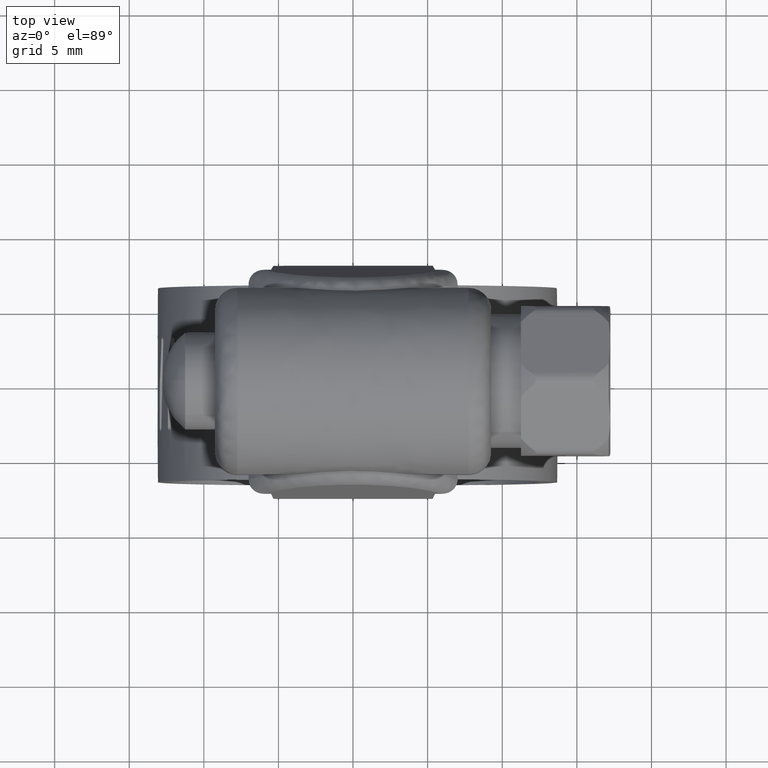
[diagram: clean part render]
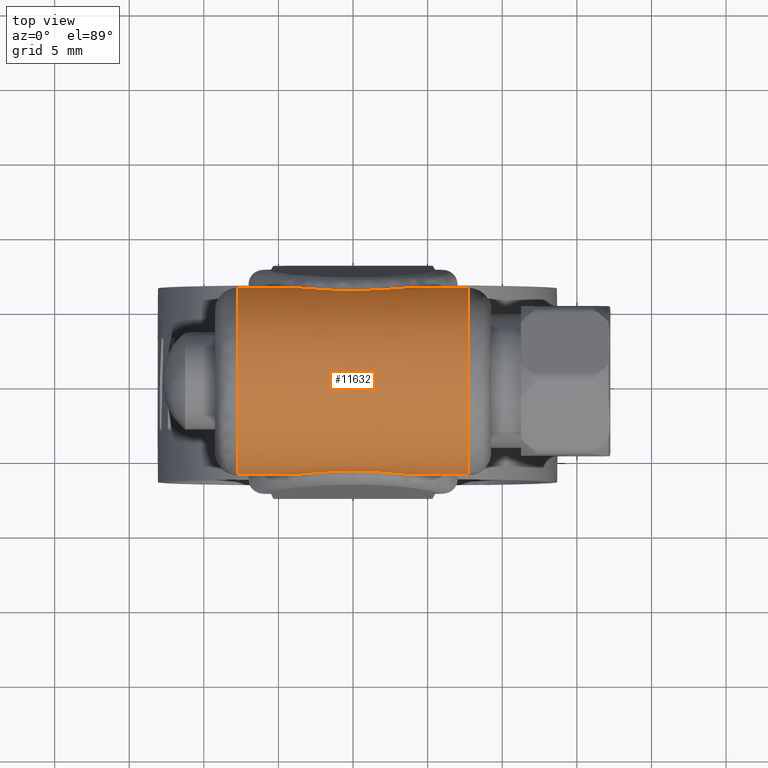
[diagram: same view with one face highlighted and labeled with its STEP entity id]
A machine part, top view. The second image highlights one B-rep face of the part: STEP entity #11632.
In plain terms, the highlighted face is a freeform B-spline surface patch.
Its self-contained STEP definition (entity closure, byte-faithful):
#9795=CARTESIAN_POINT('',(-3.766983245140355,-6.249999633170980,16.577121365332999));
#9796=VERTEX_POINT('',#9795);
#9908=CARTESIAN_POINT('',(3.766983245140355,-6.249999633170980,16.577121365332999));
#9909=VERTEX_POINT('',#9908);
#9917=CARTESIAN_POINT('',(-3.766983245140355,-6.249999633170980,16.577121365332999));
#9918=CARTESIAN_POINT('',(-3.478831496909463,-6.229233364205876,16.739128154655241));
#9919=CARTESIAN_POINT('',(-3.183300914378316,-6.204570008767342,16.882148632117168));
#9920=CARTESIAN_POINT('',(-2.576808892005547,-6.155228093785371,17.130036402120751));
#9921=CARTESIAN_POINT('',(-2.265836634976381,-6.130547265610534,17.234876518080021));
#9922=CARTESIAN_POINT('',(-1.866693869858923,-6.103751019367197,17.340919599546389));
#9923=CARTESIAN_POINT('',(-1.786486061357972,-6.098601892761600,17.360832235081901));
#9924=CARTESIAN_POINT('',(-1.626024433981459,-6.088846631766009,17.397907521513719));
#9925=CARTESIAN_POINT('',(-1.545665445436081,-6.084233341677489,17.415098594033861));
#9926=CARTESIAN_POINT('',(-1.304205280765513,-6.071283367227001,17.462673344400940));
#9927=CARTESIAN_POINT('',(-1.142721123573348,-6.063841070201703,17.489062200122419));
#9928=CARTESIAN_POINT('',(-0.656740159557208,-6.045693866015511,17.552452619586020));
#9929=CARTESIAN_POINT('',(-0.330719706065374,-6.039235105378521,17.573749912531952));
#9930=CARTESIAN_POINT('',(0.161419786626403,-6.039184386857341,17.573920279852860));
#9931=CARTESIAN_POINT('',(0.325985564198005,-6.040757096750824,17.568663909435760));
#9932=CARTESIAN_POINT('',(0.573631993009526,-6.045493593546023,17.552599085312352));
#9933=CARTESIAN_POINT('',(0.656241352251390,-6.047467871330164,17.545878086249040));
#9934=CARTESIAN_POINT('',(0.820475667525163,-6.052146371881373,17.529813216404978));
#9935=CARTESIAN_POINT('',(0.902253417529042,-6.054853191231874,17.520460500731989));
#9936=CARTESIAN_POINT('',(1.309472620170547,-6.070102513587345,17.467179843144940));
#9937=CARTESIAN_POINT('',(1.629917328613110,-6.087864840067938,17.403768142886481));
#9938=CARTESIAN_POINT('',(2.260627271324118,-6.130187882777850,17.236317853900928));
#9939=CARTESIAN_POINT('',(2.570888658853245,-6.154751397064583,17.132263968381999));
#9940=CARTESIAN_POINT('',(3.028839962946760,-6.192001216301294,16.945374784512900));
#9941=CARTESIAN_POINT('',(3.179777303179230,-6.204428908061730,16.878107182095970));
#9942=CARTESIAN_POINT('',(3.476686108309584,-6.228226204638982,16.734530296358798));
#9943=CARTESIAN_POINT('',(3.622917516897374,-6.239617229855899,16.658119055673680));
#9944=CARTESIAN_POINT('',(3.766983245140355,-6.249999633170980,16.577121365332999));
#9945=B_SPLINE_CURVE_WITH_KNOTS('',3,(#9917,#9918,#9919,#9920,#9921,#9922,#9923,#9924,#9925,#9926,#9927,#9928,#9929,#9930,#9931,#9932,#9933,#9934,#9935,#9936,#9937,#9938,#9939,#9940,#9941,#9942,#9943,#9944),.UNSPECIFIED.,.F.,.U.,(4,2,2,2,2,2,2,2,2,2,2,2,2,4),(0.000000039906754,0.125000000000001,0.250000000000001,0.281250000000001,0.312500000000001,0.375000000000001,0.500000000000001,0.562500000000001,0.593750000000001,0.625000000000000,0.750000000000000,0.875000000000000,0.937500000000000,0.999999982435041),.UNSPECIFIED.);
#9946=EDGE_CURVE('',#9796,#9909,#9945,.T.);
#10138=CARTESIAN_POINT('',(-3.767731017053410,6.249999633170980,16.577121365332999));
#10139=VERTEX_POINT('',#10138);
#10147=CARTESIAN_POINT('',(3.767731017053410,6.249999633170980,16.577121365332999));
#10148=VERTEX_POINT('',#10147);
#10149=CARTESIAN_POINT('',(3.767731017053410,6.249999633170980,16.577121365332999));
#10150=CARTESIAN_POINT('',(3.479497733507518,6.229237709105721,16.739094258291651));
#10151=CARTESIAN_POINT('',(3.183884050679524,6.204583222070062,16.882071151559519));
#10152=CARTESIAN_POINT('',(2.577243934754033,6.155257050299552,17.129902017543969));
#10153=CARTESIAN_POINT('',(2.266206147951572,6.130582696073145,17.234727400421061));
#10154=CARTESIAN_POINT('',(1.866991587071622,6.103790234875439,17.340766625409820));
#10155=CARTESIAN_POINT('',(1.786771470837745,6.098641773924828,17.360678763914390));
#10156=CARTESIAN_POINT('',(1.626284023453253,6.088887352445290,17.397754646818960));
#10157=CARTESIAN_POINT('',(1.545912167912042,6.084274283725710,17.414946625872581));
#10158=CARTESIAN_POINT('',(1.304413467685331,6.071324521135703,17.462525250646319));
#10159=CARTESIAN_POINT('',(1.142903704963588,6.063881763437935,17.488918202284239));
#10160=CARTESIAN_POINT('',(0.656845720759579,6.045732683460419,17.552320710697689));
#10161=CARTESIAN_POINT('',(0.330773580215899,6.039272260056391,17.573625094178219));
#10162=CARTESIAN_POINT('',(-0.161444854682112,6.039221514861135,17.573795563976041));
#10163=CARTESIAN_POINT('',(-0.326037165918512,6.040794574774885,17.568537633646770));
#10164=CARTESIAN_POINT('',(-0.573723678317318,6.045531948734165,17.552468569044731));
#10165=CARTESIAN_POINT('',(-0.656346915220894,6.047506583847865,17.545745815254921));
#10166=CARTESIAN_POINT('',(-0.820608736505639,6.052185828560140,17.529677062264259));
#10167=CARTESIAN_POINT('',(-0.902400225254582,6.054893035526168,17.520322214310770));
#10168=CARTESIAN_POINT('',(-1.309688241338812,6.070144131077192,17.467030690373669));
#10169=CARTESIAN_POINT('',(-1.630188360697988,6.087907219618561,17.403609516303838));
#10170=CARTESIAN_POINT('',(-2.261015828429809,6.130224851233542,17.236162525183840));
#10171=CARTESIAN_POINT('',(-2.571339628588592,6.154781890041164,17.132122576332680));
#10172=CARTESIAN_POINT('',(-3.029391561703454,6.192018955972971,16.945279975485011));
#10173=CARTESIAN_POINT('',(-3.180366883374803,6.204442304778198,16.878030458831791));
#10174=CARTESIAN_POINT('',(-3.477353567144340,6.228231820699066,16.734492306269210));
#10175=CARTESIAN_POINT('',(-3.623625442391634,6.239619468304403,16.658101592606808));
#10176=CARTESIAN_POINT('',(-3.767731017053410,6.249999633170980,16.577121365332999));
#10177=B_SPLINE_CURVE_WITH_KNOTS('',3,(#10149,#10150,#10151,#10152,#10153,#10154,#10155,#10156,#10157,#10158,#10159,#10160,#10161,#10162,#10163,#10164,#10165,#10166,#10167,#10168,#10169,#10170,#10171,#10172,#10173,#10174,#10175,#10176),.UNSPECIFIED.,.F.,.U.,(4,2,2,2,2,2,2,2,2,2,2,2,2,4),(0.000000039879375,0.125000000000000,0.250000000000001,0.281250000000000,0.312500000000000,0.375000000000000,0.500000000000000,0.562500000000000,0.593749999999999,0.624999999999999,0.749999999999999,0.875000000000000,0.937500000000000,0.999999982445228),.UNSPECIFIED.);
#10178=EDGE_CURVE('',#10148,#10139,#10177,.T.);
#10696=CARTESIAN_POINT('',(7.750000000000000,6.249999633170980,16.577121365332999));
#10697=VERTEX_POINT('',#10696);
#10757=CARTESIAN_POINT('',(7.750000000000000,-6.249999633170980,16.577121365332999));
#10758=VERTEX_POINT('',#10757);
#10799=CARTESIAN_POINT('',(7.750000000000000,-6.249999633170980,16.577121365332999));
#10800=CARTESIAN_POINT('',(7.749999999999989,-6.234945137005329,16.694573841088040));
#10801=CARTESIAN_POINT('',(7.750000000000010,-6.214735979583272,16.823298231953999));
#10802=CARTESIAN_POINT('',(7.749999999999997,-6.188399172751410,16.962927941131671));
#10803=CARTESIAN_POINT('',(7.750000000000006,-6.181413901101433,16.997754248808580));
#10804=CARTESIAN_POINT('',(7.749999999999999,-6.172302074478441,17.044236418193190));
#10805=CARTESIAN_POINT('',(7.750000000000021,-6.053425786221692,17.612204235749971));
#10806=CARTESIAN_POINT('',(7.749999999999984,-5.853381086466320,18.174764847997789));
#10807=CARTESIAN_POINT('',(7.749999999999846,-5.586853825809561,18.690215578280469));
#10808=CARTESIAN_POINT('',(7.750000000000203,-5.559030289277543,18.742474166174631));
#10809=CARTESIAN_POINT('',(7.750000000000119,-5.536878671588400,18.784341903090439));
#10810=CARTESIAN_POINT('',(7.749999999999965,-5.513781208517113,18.825695058589581));
#10811=CARTESIAN_POINT('',(7.750000000000014,-5.490933279459092,18.867187396842720));
#10812=CARTESIAN_POINT('',(7.749999999999942,-5.333001724436028,19.145197405472850));
#10813=CARTESIAN_POINT('',(7.750000000000050,-5.002918582207061,19.638377589723810));
#10814=CARTESIAN_POINT('',(7.749999999999989,-4.404688252876738,20.313513278481530));
#10815=CARTESIAN_POINT('',(7.750000000000006,-3.786404788194126,20.833317064959228));
#10816=CARTESIAN_POINT('',(7.749999999999990,-3.090092537459213,21.284628484533680));
#10817=CARTESIAN_POINT('',(7.750000000000013,-2.429364911677420,21.609243718367669));
#10818=CARTESIAN_POINT('',(7.750000000000000,-1.452168151249757,21.940697334171240));
#10819=CARTESIAN_POINT('',(7.750000000000016,-0.733759100190387,22.053183066058850));
#10820=CARTESIAN_POINT('',(7.750000000000001,-0.236769478383794,22.072657352986020));
#10821=CARTESIAN_POINT('',(7.750000000000004,-0.213095313120322,22.073355193444851));
#10822=CARTESIAN_POINT('',(7.750000000000008,-0.177590992446614,22.074749318349511));
#10823=CARTESIAN_POINT('',(7.750000000003596,-0.142065956632096,22.075395147341901));
#10824=CARTESIAN_POINT('',(7.749999999987081,-0.082878490939576,22.076779673171099));
#10825=CARTESIAN_POINT('',(7.750000000012834,-0.023684964612218,22.077197998304079));
#10826=CARTESIAN_POINT('',(7.749999999994119,0.035506813886916,22.077095962441330));
#10827=CARTESIAN_POINT('',(7.750000000001188,0.071019517404853,22.076566180203621));
#10828=CARTESIAN_POINT('',(7.750000000000006,0.106547597894328,22.076352563012708));
#10829=CARTESIAN_POINT('',(7.750000000000006,0.142062493286065,22.075352382479981));
#10830=CARTESIAN_POINT('',(7.750000000000006,0.177587199596809,22.074750491708318));
#10831=CARTESIAN_POINT('',(7.750000000000006,0.213090238047766,22.073355379435160));
#10832=CARTESIAN_POINT('',(7.750000000000010,0.236767069427895,22.072678279711631));
#10833=CARTESIAN_POINT('',(7.749999999999996,0.426091695280857,22.065209725157271));
#10834=CARTESIAN_POINT('',(7.750000000000004,0.615092464040301,22.049719084448061));
#10835=CARTESIAN_POINT('',(7.750000000000005,0.814784986952219,22.024282334712471));
#10836=CARTESIAN_POINT('',(7.750000000000010,0.849966212616819,22.019399652257039));
#10837=CARTESIAN_POINT('',(7.750000000000004,0.896914526005709,22.013100937220429));
#10838=CARTESIAN_POINT('',(7.750000000000010,0.978912359705010,22.000920735489711));
#10839=CARTESIAN_POINT('',(7.750000000000004,1.072391546975230,21.985491610040981));
#10840=CARTESIAN_POINT('',(7.750000000000004,1.153961240607198,21.970703906530279));
#10841=CARTESIAN_POINT('',(7.750000000000007,1.200443174555968,21.961575798059709));
#10842=CARTESIAN_POINT('',(7.750000000000008,1.235332251146535,21.954903588511641));
#10843=CARTESIAN_POINT('',(7.750000000000005,1.479032746090753,21.905422931362889));
#10844=CARTESIAN_POINT('',(7.750000000000004,2.155846190480277,21.728001790903569));
#10845=CARTESIAN_POINT('',(7.750000000000004,3.134855659307764,21.290752650911539));
#10846=CARTESIAN_POINT('',(7.750000000000004,4.054044028876471,20.634228310582021));
#10847=CARTESIAN_POINT('',(7.750000000000001,4.662725314146909,20.034402055403980));
#10848=CARTESIAN_POINT('',(7.750000000000004,5.139765381459308,19.444500888515140));
#10849=CARTESIAN_POINT('',(7.750000000000011,5.630827574103403,18.673731751133339));
#10850=CARTESIAN_POINT('',(7.750000000000009,5.910619030238081,18.003513278585949));
#10851=CARTESIAN_POINT('',(7.750000000000000,6.039627406047101,17.572407667634678));
#10852=CARTESIAN_POINT('',(7.750000000000004,6.046188199617560,17.549650560425551));
#10853=CARTESIAN_POINT('',(7.750000000000000,6.056375122405487,17.515612617011399));
#10854=CARTESIAN_POINT('',(7.750000000000002,6.065799268037471,17.481356058963438));
#10855=CARTESIAN_POINT('',(7.750000000000001,6.075607964656327,17.447207818138612));
#10856=CARTESIAN_POINT('',(7.750000000000004,6.084644057016104,17.412847230371948));
#10857=CARTESIAN_POINT('',(7.750000000000004,6.094065834057004,17.378590812726781));
#10858=CARTESIAN_POINT('',(7.750000000000001,6.102720288031065,17.344132479585131));
#10859=CARTESIAN_POINT('',(7.750000000000002,6.108734964806936,17.321224023267540));
#10860=CARTESIAN_POINT('',(7.750000000000005,6.151973847276460,17.148947079282610));
#10861=CARTESIAN_POINT('',(7.750000000000007,6.185979716079905,16.986558492528509));
#10862=CARTESIAN_POINT('',(7.750000000000000,6.215489268886876,16.811406026305612));
#10863=CARTESIAN_POINT('',(7.749999999999998,6.219171411391192,16.788006732830880));
#10864=CARTESIAN_POINT('',(7.750000000000005,6.225068201831544,16.752968283995500));
#10865=CARTESIAN_POINT('',(7.750000000012412,6.230225703100882,16.717814132440090));
#10866=CARTESIAN_POINT('',(7.749999999956607,6.239124586484185,16.659283685153220));
#10867=CARTESIAN_POINT('',(7.750000000020273,6.245470500821281,16.612348175090901));
#10868=CARTESIAN_POINT('',(7.750000000000000,6.249999633170980,16.577121365332999));
#10869=B_SPLINE_CURVE_WITH_KNOTS('',3,(#10799,#10800,#10801,#10802,#10803,#10804,#10805,#10806,#10807,#10808,#10809,#10810,#10811,#10812,#10813,#10814,#10815,#10816,#10817,#10818,#10819,#10820,#10821,#10822,#10823,#10824,#10825,#10826,#10827,#10828,#10829,#10830,#10831,#10832,#10833,#10834,#10835,#10836,#10837,#10838,#10839,#10840,#10841,#10842,#10843,#10844,#10845,#10846,#10847,#10848,#10849,#10850,#10851,#10852,#10853,#10854,#10855,#10856,#10857,#10858,#10859,#10860,#10861,#10862,#10863,#10864,#10865,#10866,#10867,#10868),.UNSPECIFIED.,.F.,.U.,(4,1,1,1,1,1,1,1,1,1,1,1,1,1,1,1,1,1,1,2,1,1,1,1,1,1,1,1,1,1,1,2,1,1,1,1,1,1,1,1,1,1,1,1,1,1,1,1,2,1,1,1,1,1,1,1,2,2,1,1,1,1,4),(0.000124799223045,0.355365705905982,0.390873085270368,0.426398795418098,0.461924505565825,0.532976566814394,2.167158820106714,2.238209441879281,2.273735026397544,2.344777563628290,2.380303048658176,2.415828533688069,2.486879545142536,3.339492666467365,4.192105684531191,5.186819653579917,5.755227717158810,6.678892970035191,7.389392549686177,8.845923622968900,8.881454484218773,8.916985345468682,8.952514615685750,8.988043885902783,9.094595903211355,9.130091568387520,9.165618475320933,9.201145382254341,9.236673636235469,9.272201890216602,9.307731282496983,9.343260674777383,9.876149282739867,9.911651710558873,9.947177844058333,9.982703977557771,10.053757024640960,10.195864788352351,10.266919213517300,10.302446523660659,10.337973833804041,10.373482410414489,11.048471284279040,12.433967378163951,13.570780668464099,14.423393509942350,14.991802175099380,15.844411388884600,17.158839285605460,17.194367612315549,17.229895939025631,17.265423899570280,17.300951860114939,17.336479351146188,17.372006842177431,17.407533750068101,17.443060657958782,17.940397905040470,17.975928211985309,18.011458518930169,18.046987406176989,18.082516293423812,18.189067482576640),.UNSPECIFIED.);
#10870=EDGE_CURVE('',#10758,#10697,#10869,.T.);
#10960=CARTESIAN_POINT('',(-7.749999999999810,6.249999633170980,16.577121365332999));
#10961=VERTEX_POINT('',#10960);
#11022=CARTESIAN_POINT('',(-7.750000000000000,-6.249999633170980,16.577121365332999));
#11023=VERTEX_POINT('',#11022);
#11037=CARTESIAN_POINT('',(-7.749999999999810,6.249999633170980,16.577121365332999));
#11038=CARTESIAN_POINT('',(-7.749999999999801,6.234945137005329,16.694573841088040));
#11039=CARTESIAN_POINT('',(-7.749999999999830,6.214735979583272,16.823298231953999));
#11040=CARTESIAN_POINT('',(-7.749999999999815,6.188399172751410,16.962927941131671));
#11041=CARTESIAN_POINT('',(-7.749999999999823,6.181413901101433,16.997754248808580));
#11042=CARTESIAN_POINT('',(-7.749999999999814,6.172302074478441,17.044236418193190));
#11043=CARTESIAN_POINT('',(-7.749999999999861,6.053425786221692,17.612204235749971));
#11044=CARTESIAN_POINT('',(-7.749999999999822,5.853381086466319,18.174764847997789));
#11045=CARTESIAN_POINT('',(-7.749999999999698,5.586853825809562,18.690215578280469));
#11046=CARTESIAN_POINT('',(-7.750000000000060,5.559030289277542,18.742474166174631));
#11047=CARTESIAN_POINT('',(-7.749999999999969,5.536878671588400,18.784341903090439));
#11048=CARTESIAN_POINT('',(-7.749999999999828,5.513781208517113,18.825695058589581));
#11049=CARTESIAN_POINT('',(-7.749999999999870,5.490933279462314,18.867187396859670));
#11050=CARTESIAN_POINT('',(-7.749999999999800,5.333001724377626,19.145197405165661));
#11051=CARTESIAN_POINT('',(-7.749999999999930,5.002918583390780,19.638377597080520));
#11052=CARTESIAN_POINT('',(-7.749999999999880,4.404688245562047,20.313513232294440));
#11053=CARTESIAN_POINT('',(-7.749999999999927,3.786404813088975,20.833317216969540));
#11054=CARTESIAN_POINT('',(-7.749999999999917,3.090092459175002,21.284628012497731));
#11055=CARTESIAN_POINT('',(-7.749999999999965,2.429365190433553,21.609245209138120));
#11056=CARTESIAN_POINT('',(-7.749999999999962,1.452167357653666,21.940693434107668));
#11057=CARTESIAN_POINT('',(-7.749999999999990,0.733759857349868,22.053187930033040));
#11058=CARTESIAN_POINT('',(-7.749999999999990,0.236769283163427,22.072655941180098));
#11059=CARTESIAN_POINT('',(-7.749999999999994,0.213095313120322,22.073355193444851));
#11060=CARTESIAN_POINT('',(-7.749999999999989,0.177590992446614,22.074749318349511));
#11061=CARTESIAN_POINT('',(-7.750000000003587,0.142065956632096,22.075395147341901));
#11062=CARTESIAN_POINT('',(-7.749999999987073,0.082878490939576,22.076779673171099));
#11063=CARTESIAN_POINT('',(-7.750000000012825,0.023684964612218,22.077197998304079));
#11064=CARTESIAN_POINT('',(-7.749999999994107,-0.035506813886916,22.077095962441330));
#11065=CARTESIAN_POINT('',(-7.750000000001174,-0.071019517404853,22.076566180203621));
#11066=CARTESIAN_POINT('',(-7.750000000000000,-0.106547597894328,22.076352563012708));
#11067=CARTESIAN_POINT('',(-7.749999999999997,-0.142062493286065,22.075352382479981));
#11068=CARTESIAN_POINT('',(-7.749999999999996,-0.177587199596809,22.074750491708318));
#11069=CARTESIAN_POINT('',(-7.750000000000000,-0.213090238047766,22.073355379435160));
#11070=CARTESIAN_POINT('',(-7.750000000000004,-0.236767069427895,22.072678279711631));
#11071=CARTESIAN_POINT('',(-7.749999999999993,-0.426091695280857,22.065209725157271));
#11072=CARTESIAN_POINT('',(-7.749999999999975,-0.615092464040301,22.049719084448061));
#11073=CARTESIAN_POINT('',(-7.750000000000010,-0.814784986952219,22.024282334712471));
#11074=CARTESIAN_POINT('',(-7.750000000000013,-0.849966212616819,22.019399652257039));
#11075=CARTESIAN_POINT('',(-7.750000000000008,-0.896914526005709,22.013100937220429));
#11076=CARTESIAN_POINT('',(-7.750000000000011,-0.978912359705010,22.000920735489711));
#11077=CARTESIAN_POINT('',(-7.750000000000008,-1.072391546975230,21.985491610040981));
#11078=CARTESIAN_POINT('',(-7.750000000000012,-1.153961240607198,21.970703906530279));
#11079=CARTESIAN_POINT('',(-7.750000000000014,-1.200443174555968,21.961575798059709));
#11080=CARTESIAN_POINT('',(-7.750000000000015,-1.235332251146563,21.954903588511652));
#11081=CARTESIAN_POINT('',(-7.750000000000012,-1.479032745729191,21.905422931407799));
#11082=CARTESIAN_POINT('',(-7.750000000000030,-2.155846192345386,21.728001790672160));
#11083=CARTESIAN_POINT('',(-7.750000000000025,-3.134855654658613,21.290752651488880));
#11084=CARTESIAN_POINT('',(-7.750000000000036,-4.054044036748232,20.634228309596761));
#11085=CARTESIAN_POINT('',(-7.750000000000035,-4.662725296573284,20.034402057795418));
#11086=CARTESIAN_POINT('',(-7.750000000000032,-5.139765431696120,19.444500880444920));
#11087=CARTESIAN_POINT('',(-7.750000000000026,-5.630827435006488,18.673731778313840));
#11088=CARTESIAN_POINT('',(-7.750000000000024,-5.910619145172764,18.003513258032189));
#11089=CARTESIAN_POINT('',(-7.750000000000013,-6.039627371725244,17.572407670664958));
#11090=CARTESIAN_POINT('',(-7.750000000000017,-6.046188199617560,17.549650560425551));
#11091=CARTESIAN_POINT('',(-7.750000000000013,-6.056375122405487,17.515612617011399));
#11092=CARTESIAN_POINT('',(-7.750000000000011,-6.065799268037471,17.481356058963438));
#11093=CARTESIAN_POINT('',(-7.750000000000016,-6.075607964656327,17.447207818138612));
#11094=CARTESIAN_POINT('',(-7.750000000000006,-6.084644057016104,17.412847230371948));
#11095=CARTESIAN_POINT('',(-7.750000000000013,-6.094065834057004,17.378590812726781));
#11096=CARTESIAN_POINT('',(-7.750000000000011,-6.102720288031065,17.344132479585131));
#11097=CARTESIAN_POINT('',(-7.750000000000011,-6.108734964806936,17.321224023267540));
#11098=CARTESIAN_POINT('',(-7.750000000000017,-6.151973847276460,17.148947079282610));
#11099=CARTESIAN_POINT('',(-7.750000000000005,-6.185979716079905,16.986558492528509));
#11100=CARTESIAN_POINT('',(-7.750000000000004,-6.215489268886876,16.811406026305612));
#11101=CARTESIAN_POINT('',(-7.750000000000002,-6.219171411391192,16.788006732830880));
#11102=CARTESIAN_POINT('',(-7.750000000000006,-6.225068201831544,16.752968283995500));
#11103=CARTESIAN_POINT('',(-7.750000000012414,-6.230225703100882,16.717814132440090));
#11104=CARTESIAN_POINT('',(-7.749999999956620,-6.239124586484185,16.659283685153220));
#11105=CARTESIAN_POINT('',(-7.750000000020270,-6.245470500821281,16.612348175090901));
#11106=CARTESIAN_POINT('',(-7.750000000000000,-6.249999633170980,16.577121365332999));
#11107=B_SPLINE_CURVE_WITH_KNOTS('',3,(#11037,#11038,#11039,#11040,#11041,#11042,#11043,#11044,#11045,#11046,#11047,#11048,#11049,#11050,#11051,#11052,#11053,#11054,#11055,#11056,#11057,#11058,#11059,#11060,#11061,#11062,#11063,#11064,#11065,#11066,#11067,#11068,#11069,#11070,#11071,#11072,#11073,#11074,#11075,#11076,#11077,#11078,#11079,#11080,#11081,#11082,#11083,#11084,#11085,#11086,#11087,#11088,#11089,#11090,#11091,#11092,#11093,#11094,#11095,#11096,#11097,#11098,#11099,#11100,#11101,#11102,#11103,#11104,#11105,#11106),.UNSPECIFIED.,.F.,.U.,(4,1,1,1,1,1,1,1,1,1,1,1,1,1,1,1,1,1,1,2,1,1,1,1,1,1,1,1,1,1,1,2,1,1,1,1,1,1,1,1,1,1,1,1,1,1,1,1,2,1,1,1,1,1,1,1,2,2,1,1,1,1,4),(0.000124799223045,0.355365705905982,0.390873085270368,0.426398795418098,0.461924505565825,0.532976566814394,2.167158820106714,2.238209441879281,2.273735026397544,2.344777563628290,2.380303048658176,2.415828533688069,2.486879545142536,3.339492666467365,4.192105684531191,5.186819653579917,5.755227717158810,6.678892970035191,7.389392549686177,8.845923622968900,8.881454484218773,8.916985345468682,8.952514615685750,8.988043885902783,9.094595903211355,9.130091568387520,9.165618475320933,9.201145382254341,9.236673636235469,9.272201890216602,9.307731282496983,9.343260674777383,9.876149282739867,9.911651710558873,9.947177844058333,9.982703977557771,10.053757024640960,10.195864788352351,10.266919213517300,10.302446523660659,10.337973833804041,10.373482410414489,11.048471284279040,12.433967378163951,13.570780668464099,14.423393509942350,14.991802175099380,15.844411388884600,17.158839285605460,17.194367612315549,17.229895939025631,17.265423899570280,17.300951860114939,17.336479351146188,17.372006842177431,17.407533750068101,17.443060657958782,17.940397905040470,17.975928211985309,18.011458518930169,18.046987406176989,18.082516293423812,18.189067482576640),.UNSPECIFIED.);
#11108=EDGE_CURVE('',#10961,#11023,#11107,.T.);
#11563=CARTESIAN_POINT('',(7.750000000000000,-6.249999633170980,16.577121365332999));
#11564=CARTESIAN_POINT('',(3.766983245140355,-6.249999633170980,16.577121365332999));
#11565=QUASI_UNIFORM_CURVE('',1,(#11563,#11564),.UNSPECIFIED.,.F.,.U.);
#11566=EDGE_CURVE('',#10758,#9909,#11565,.T.);
#11586=CARTESIAN_POINT('',(-3.766983245140355,-6.249999633170980,16.577121365332999));
#11587=CARTESIAN_POINT('',(-7.750000000000000,-6.249999633170980,16.577121365332999));
#11588=QUASI_UNIFORM_CURVE('',1,(#11586,#11587),.UNSPECIFIED.,.F.,.U.);
#11589=EDGE_CURVE('',#9796,#11023,#11588,.T.);
#11596=CARTESIAN_POINT('',(8.137500000000008,6.256752797267127,16.522550016851341));
#11597=CARTESIAN_POINT('',(-8.147187500000037,6.256752797267127,16.522550016851341));
#11598=CARTESIAN_POINT('',(8.137500000000008,5.578620881440008,22.205784116358405));
#11599=CARTESIAN_POINT('',(-8.147187500000037,5.578620881440008,22.205784116358405));
#11600=CARTESIAN_POINT('',(8.137500000000008,-0.143444799420466,22.075488034368480));
#11601=CARTESIAN_POINT('',(-8.147187500000037,-0.143444799420466,22.075488034368480));
#11602=CARTESIAN_POINT('',(8.137500000000008,-5.865510480280938,21.945191952378561));
#11603=CARTESIAN_POINT('',(-8.147187500000037,-5.865510480280938,21.945191952378561));
#11604=CARTESIAN_POINT('',(8.137500000000008,-6.284249946758260,16.236981200813990));
#11605=CARTESIAN_POINT('',(-8.147187500000037,-6.284249946758260,16.236981200813990));
#11613=(BOUNDED_SURFACE()B_SPLINE_SURFACE(1,2,((#11596,#11598,#11600,#11602,#11604),(#11597,#11599,#11601,#11603,#11605)),.UNSPECIFIED.,.F.,.F.,.U.)B_SPLINE_SURFACE_WITH_KNOTS((2,2),(3,2,3),(0.0,16.284687500000050),(0.0,9.738261264178698,19.476522528357400),.UNSPECIFIED.)GEOMETRIC_REPRESENTATION_ITEM()RATIONAL_B_SPLINE_SURFACE(((1.0,0.740218127486832,1.0,0.740218127486832,1.0),(1.0,0.740218127486832,1.0,0.740218127486832,1.0)))REPRESENTATION_ITEM('')SURFACE());
#11614=CARTESIAN_POINT('',(7.750000000000000,6.249999633170980,16.577121365332999));
#11615=CARTESIAN_POINT('',(3.767731017053410,6.249999633170980,16.577121365332999));
#11616=QUASI_UNIFORM_CURVE('',1,(#11614,#11615),.UNSPECIFIED.,.F.,.U.);
#11617=EDGE_CURVE('',#10697,#10148,#11616,.T.);
#11618=ORIENTED_EDGE('',*,*,#11617,.T.);
#11619=ORIENTED_EDGE('',*,*,#10178,.T.);
#11620=CARTESIAN_POINT('',(-3.767731017053410,6.249999633170980,16.577121365332999));
#11621=CARTESIAN_POINT('',(-7.749999999999810,6.249999633170980,16.577121365332999));
#11622=QUASI_UNIFORM_CURVE('',1,(#11620,#11621),.UNSPECIFIED.,.F.,.U.);
#11623=EDGE_CURVE('',#10139,#10961,#11622,.T.);
#11624=ORIENTED_EDGE('',*,*,#11623,.T.);
#11625=ORIENTED_EDGE('',*,*,#11108,.T.);
#11626=ORIENTED_EDGE('',*,*,#11589,.F.);
#11627=ORIENTED_EDGE('',*,*,#9946,.T.);
#11628=ORIENTED_EDGE('',*,*,#11566,.F.);
#11629=ORIENTED_EDGE('',*,*,#10870,.T.);
#11630=EDGE_LOOP('',(#11618,#11619,#11624,#11625,#11626,#11627,#11628,#11629));
#11631=FACE_OUTER_BOUND('',#11630,.T.);
#11632=ADVANCED_FACE('',(#11631),#11613,.T.);